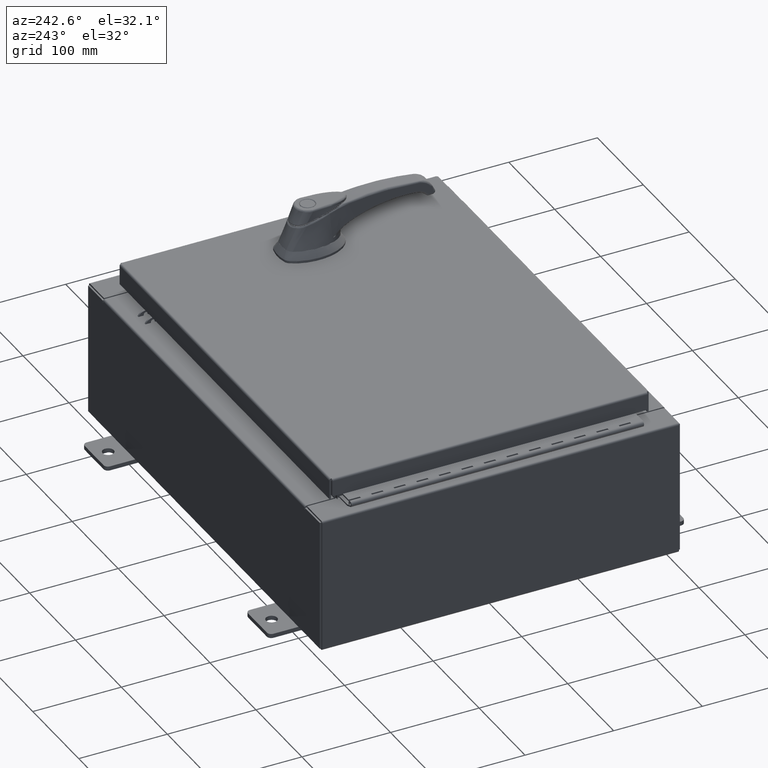
[diagram: clean part render]
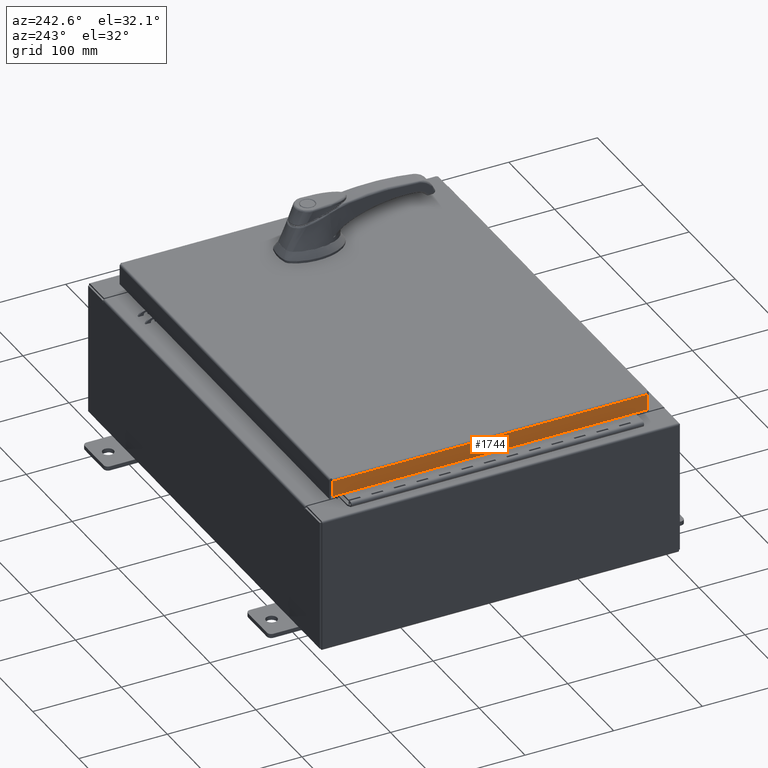
[diagram: same view with one face highlighted and labeled with its STEP entity id]
A machine part, auxiliary view. The second image highlights one B-rep face of the part: STEP entity #1744.
In plain terms, the highlighted planar face has unit normal (1, 0, -0).
Its self-contained STEP definition (entity closure, byte-faithful):
#1744 = ADVANCED_FACE ( 'NONE', ( #55601 ), #53699, .F. ) ;
#9189 = CARTESIAN_POINT ( 'NONE',  ( -9.077999999999999400, -6.991744033404087000E-016, 2.780457718396846700E-014 ) ) ;
#10625 = DIRECTION ( 'NONE',  ( 7.701855070945263300E-017, -1.000000000000000000, 7.701855070945202900E-017 ) ) ;
#16941 = EDGE_CURVE ( 'NONE', #49577, #67145, #48199, .T. ) ;
#21541 = CARTESIAN_POINT ( 'NONE',  ( -9.077999999999999400, 7.005157864376270600, 7.672133310220841000E-014 ) ) ;
#22645 = ORIENTED_EDGE ( 'NONE', *, *, #16941, .F. ) ;
#22668 = ORIENTED_EDGE ( 'NONE', *, *, #24720, .F. ) ;
#23123 = CARTESIAN_POINT ( 'NONE',  ( -9.077999999999999400, 7.005157864376271500, -0.08770000000000113800 ) ) ;
#23967 = ORIENTED_EDGE ( 'NONE', *, *, #42465, .F. ) ;
#24720 = EDGE_CURVE ( 'NONE', #32757, #56129, #105724, .T. ) ;
#30419 = CARTESIAN_POINT ( 'NONE',  ( -9.078000000000001200, -7.093999999999999400, -0.7949999999999997100 ) ) ;
#32757 = VERTEX_POINT ( 'NONE', #23123 ) ;
#34540 = AXIS2_PLACEMENT_3D ( 'NONE', #9189, #35863, #104387 ) ;
#35863 = DIRECTION ( 'NONE',  ( 1.000000000000000000, 7.701855070945239800E-017, -3.034122441942816500E-015 ) ) ;
#38219 = EDGE_CURVE ( 'NONE', #32757, #67145, #39830, .T. ) ;
#39830 = LINE ( 'NONE', #21541, #106077 ) ;
#42465 = EDGE_CURVE ( 'NONE', #56129, #49577, #105678, .T. ) ;
#48199 = LINE ( 'NONE', #30419, #87263 ) ;
#49577 = VERTEX_POINT ( 'NONE', #104250 ) ;
#53699 = PLANE ( 'NONE',  #34540 ) ;
#53741 = EDGE_LOOP ( 'NONE', ( #22668, #57406, #22645, #23967 ) ) ;
#55601 = FACE_OUTER_BOUND ( 'NONE', #53741, .T. ) ;
#56129 = VERTEX_POINT ( 'NONE', #59083 ) ;
#57406 = ORIENTED_EDGE ( 'NONE', *, *, #38219, .T. ) ;
#59083 = CARTESIAN_POINT ( 'NONE',  ( -9.077999999999999400, -7.005157864376266200, -0.08770000000000061100 ) ) ;
#60997 = DIRECTION ( 'NONE',  ( -3.034122441942816500E-015, 6.982962677686265900E-015, -1.000000000000000000 ) ) ;
#61290 = VECTOR ( 'NONE', #10625, 39.37007874015748100 ) ;
#64401 = CARTESIAN_POINT ( 'NONE',  ( -9.078000000000001200, 7.005157864376276000, -0.7949999999999979300 ) ) ;
#67145 = VERTEX_POINT ( 'NONE', #64401 ) ;
#68305 = CARTESIAN_POINT ( 'NONE',  ( -9.077999999999999400, -7.093999999999999400, -0.08770000000000004200 ) ) ;
#87263 = VECTOR ( 'NONE', #102315, 39.37007874015748100 ) ;
#87914 = DIRECTION ( 'NONE',  ( -3.034122441942816500E-015, 6.982962677686265900E-015, -1.000000000000000000 ) ) ;
#100513 = VECTOR ( 'NONE', #60997, 39.37007874015748100 ) ;
#102315 = DIRECTION ( 'NONE',  ( -7.701855070945201600E-017, 1.000000000000000000, 1.251551449028595500E-016 ) ) ;
#102691 = CARTESIAN_POINT ( 'NONE',  ( -9.077999999999999400, -7.005157864376268900, -0.07469999999999976700 ) ) ;
#104250 = CARTESIAN_POINT ( 'NONE',  ( -9.078000000000001200, -7.005157864376262600, -0.7949999999999996000 ) ) ;
#104387 = DIRECTION ( 'NONE',  ( -3.034122441942816500E-015, 0.0000000000000000000, -1.000000000000000000 ) ) ;
#105678 = LINE ( 'NONE', #102691, #100513 ) ;
#105724 = LINE ( 'NONE', #68305, #61290 ) ;
#106077 = VECTOR ( 'NONE', #87914, 39.37007874015748100 ) ;